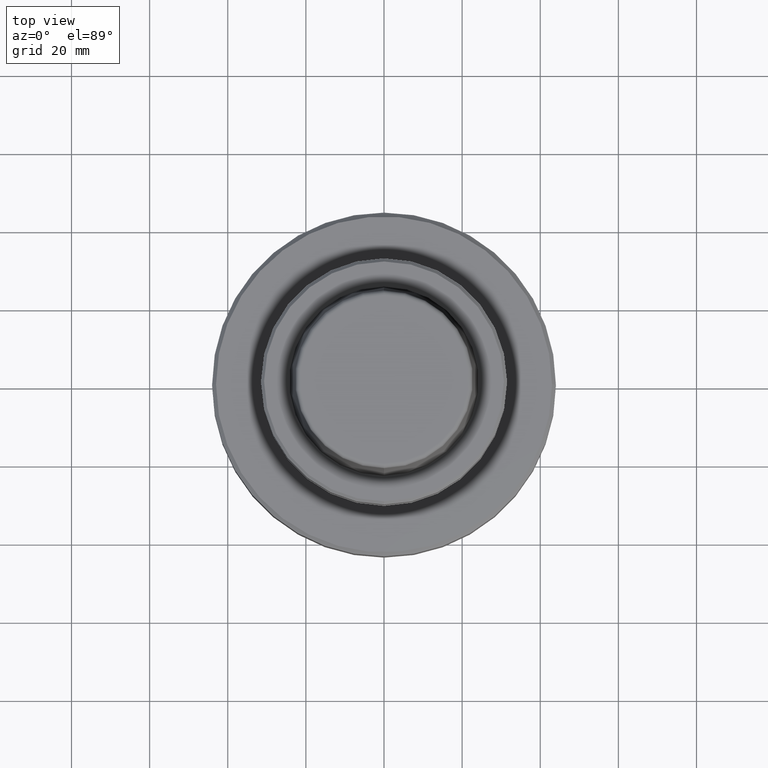
[diagram: clean part render]
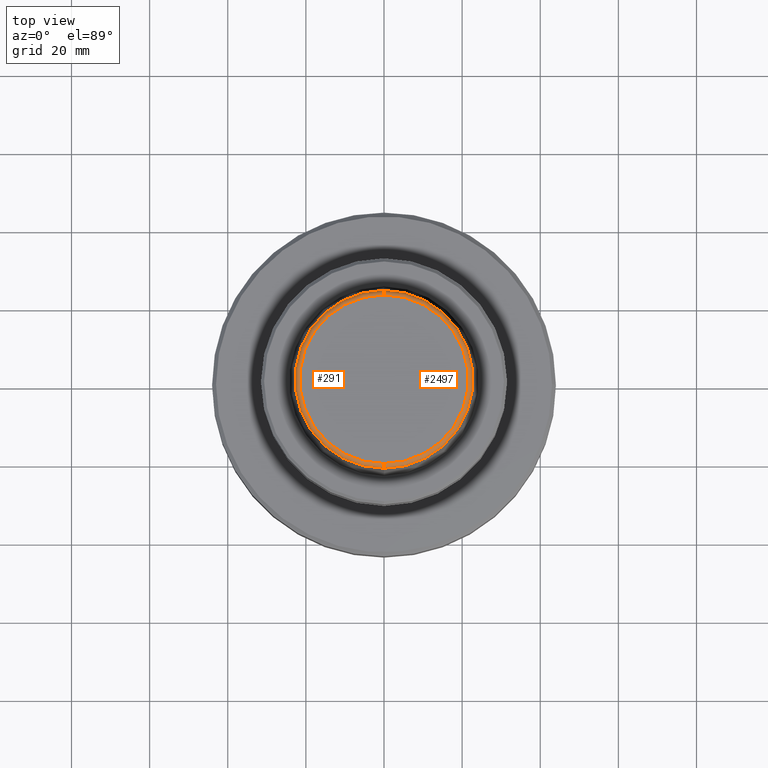
[diagram: same view with one multi-face feature highlighted, each face labeled with its STEP entity id]
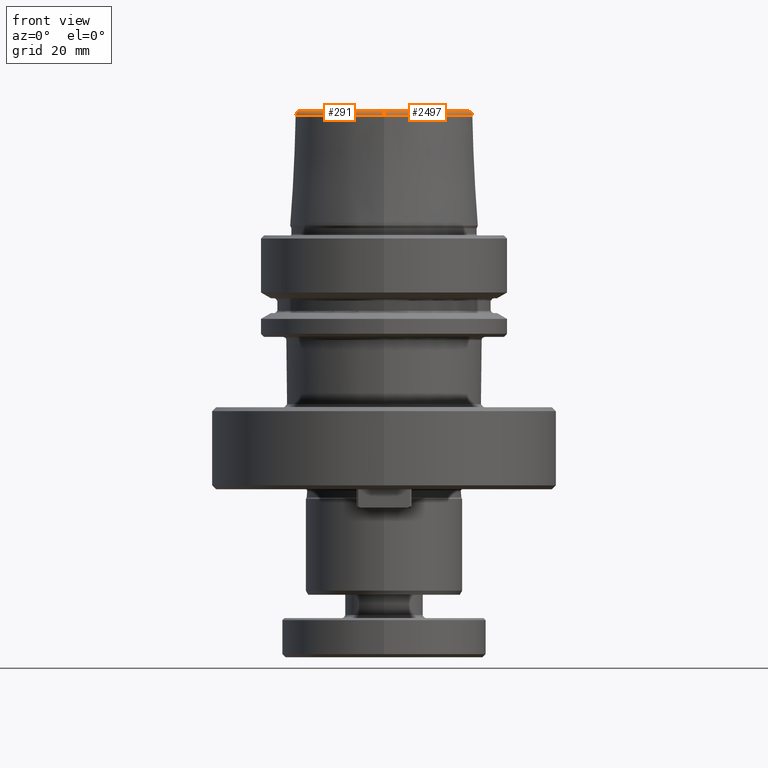
[diagram: same view with one multi-face feature highlighted, each face labeled with its STEP entity id]
A machine part, top view. The highlighted faces form ONE feature: a constant-radius fillet chain: 2 tangent blend faces with common blend radius 1.2 mm. The faces share edges in the B-rep.
A second angle (front view) of the same feature is appended — it is thin or edge-on in the first view.
Their STEP definitions:
[1] entity #2497 (Torus):
#192 = DIRECTION ( 'NONE',  ( -0.0000000000000000000, 1.342951762274862300E-018, 1.000000000000000000 ) ) ;
#340 = ORIENTED_EDGE ( 'NONE', *, *, #3202, .F. ) ;
#477 = CARTESIAN_POINT ( 'NONE',  ( 2.716303250904411500E-015, 21.58105086660056000, 31.90000000000669900 ) ) ;
#502 = VERTEX_POINT ( 'NONE', #477 ) ;
#596 = DIRECTION ( 'NONE',  ( -1.000000000000000000, -0.0000000000000000000, 0.0000000000000000000 ) ) ;
#704 = CARTESIAN_POINT ( 'NONE',  ( 2.876381753844058100E-015, -22.77954767978208000, 30.76004488983019800 ) ) ;
#716 = CARTESIAN_POINT ( 'NONE',  ( 2.642916486601858800E-015, 21.58105086660056000, 30.70000000000661100 ) ) ;
#760 = ORIENTED_EDGE ( 'NONE', *, *, #3186, .T. ) ;
#766 = CARTESIAN_POINT ( 'NONE',  ( 0.0000000000000000000, 0.0000000000000000000, 30.70000000000661100 ) ) ;
#810 = CIRCLE ( 'NONE', #1637, 22.77954767978208000 ) ;
#984 = DIRECTION ( 'NONE',  ( 1.224646799147352000E-016, 1.000000000000000000, 0.0000000000000000000 ) ) ;
#1176 = EDGE_CURVE ( 'NONE', #2190, #502, #3246, .T. ) ;
#1203 = CARTESIAN_POINT ( 'NONE',  ( 0.0000000000000000000, 22.77954767978208000, 30.76004488983019800 ) ) ;
#1213 = FACE_OUTER_BOUND ( 'NONE', #2095, .T. ) ;
#1240 = ORIENTED_EDGE ( 'NONE', *, *, #1176, .F. ) ;
#1284 = VERTEX_POINT ( 'NONE', #704 ) ;
#1291 = CARTESIAN_POINT ( 'NONE',  ( 0.0000000000000000000, -6.793463105667404900E-017, 31.90000000000669900 ) ) ;
#1416 = CARTESIAN_POINT ( 'NONE',  ( 0.0000000000000000000, -6.946553578079982000E-017, 30.76004488983019800 ) ) ;
#1569 = DIRECTION ( 'NONE',  ( 0.0000000000000000000, -1.000000000000000000, 0.0000000000000000000 ) ) ;
#1629 = AXIS2_PLACEMENT_3D ( 'NONE', #1291, #3213, #1569 ) ;
#1637 = AXIS2_PLACEMENT_3D ( 'NONE', #1416, #3334, #1681 ) ;
#1663 = AXIS2_PLACEMENT_3D ( 'NONE', #716, #2632, #984 ) ;
#1681 = DIRECTION ( 'NONE',  ( 0.0000000000000000000, -1.000000000000000000, 0.0000000000000000000 ) ) ;
#2009 = ORIENTED_EDGE ( 'NONE', *, *, #2354, .T. ) ;
#2095 = EDGE_LOOP ( 'NONE', ( #760, #2009, #1240, #340 ) ) ;
#2116 = CARTESIAN_POINT ( 'NONE',  ( 0.0000000000000000000, -21.58105086660056000, 31.90000000000669900 ) ) ;
#2182 = CIRCLE ( 'NONE', #2379, 1.200000000000083000 ) ;
#2190 = VERTEX_POINT ( 'NONE', #2116 ) ;
#2237 = CARTESIAN_POINT ( 'NONE',  ( 0.0000000000000000000, -21.58105086660056000, 30.70000000000661100 ) ) ;
#2354 = EDGE_CURVE ( 'NONE', #3374, #502, #3017, .T. ) ;
#2379 = AXIS2_PLACEMENT_3D ( 'NONE', #2237, #596, #2512 ) ;
#2497 = ADVANCED_FACE ( 'NONE', ( #1213 ), #2589, .T. ) ;
#2512 = DIRECTION ( 'NONE',  ( 0.0000000000000000000, 0.0000000000000000000, 1.000000000000000000 ) ) ;
#2589 = TOROIDAL_SURFACE ( 'NONE', #3521, 21.58105086660056000, 1.200000000000081400 ) ;
#2632 = DIRECTION ( 'NONE',  ( 1.000000000000000000, -1.224646799147353200E-016, 1.644641577079207200E-034 ) ) ;
#2954 = DIRECTION ( 'NONE',  ( 0.0000000000000000000, -1.000000000000000000, 1.342951762274862300E-018 ) ) ;
#3017 = CIRCLE ( 'NONE', #1663, 1.200000000000083000 ) ;
#3186 = EDGE_CURVE ( 'NONE', #1284, #3374, #810, .T. ) ;
#3202 = EDGE_CURVE ( 'NONE', #1284, #2190, #2182, .T. ) ;
#3213 = DIRECTION ( 'NONE',  ( -0.0000000000000000000, 1.342951762274862300E-018, 1.000000000000000000 ) ) ;
#3246 = CIRCLE ( 'NONE', #1629, 21.58105086660056000 ) ;
#3334 = DIRECTION ( 'NONE',  ( -0.0000000000000000000, 1.342951762274862300E-018, 1.000000000000000000 ) ) ;
#3374 = VERTEX_POINT ( 'NONE', #1203 ) ;
#3521 = AXIS2_PLACEMENT_3D ( 'NONE', #766, #192, #2954 ) ;
[2] entity #291 (Torus):
#208 = TOROIDAL_SURFACE ( 'NONE', #657, 21.58105086660056000, 1.200000000000081400 ) ;
#291 = ADVANCED_FACE ( 'NONE', ( #948 ), #208, .T. ) ;
#477 = CARTESIAN_POINT ( 'NONE',  ( 2.716303250904411500E-015, 21.58105086660056000, 31.90000000000669900 ) ) ;
#502 = VERTEX_POINT ( 'NONE', #477 ) ;
#596 = DIRECTION ( 'NONE',  ( -1.000000000000000000, -0.0000000000000000000, 0.0000000000000000000 ) ) ;
#657 = AXIS2_PLACEMENT_3D ( 'NONE', #684, #3149, #1505 ) ;
#679 = EDGE_CURVE ( 'NONE', #502, #2190, #709, .T. ) ;
#684 = CARTESIAN_POINT ( 'NONE',  ( 0.0000000000000000000, 0.0000000000000000000, 30.70000000000661100 ) ) ;
#704 = CARTESIAN_POINT ( 'NONE',  ( 2.876381753844058100E-015, -22.77954767978208000, 30.76004488983019800 ) ) ;
#709 = CIRCLE ( 'NONE', #2093, 21.58105086660056000 ) ;
#716 = CARTESIAN_POINT ( 'NONE',  ( 2.642916486601858800E-015, 21.58105086660056000, 30.70000000000661100 ) ) ;
#852 = CARTESIAN_POINT ( 'NONE',  ( 0.0000000000000000000, -6.793463105667404900E-017, 31.90000000000669900 ) ) ;
#948 = FACE_OUTER_BOUND ( 'NONE', #3339, .T. ) ;
#984 = DIRECTION ( 'NONE',  ( 1.224646799147352000E-016, 1.000000000000000000, 0.0000000000000000000 ) ) ;
#1124 = DIRECTION ( 'NONE',  ( 0.0000000000000000000, -1.000000000000000000, 0.0000000000000000000 ) ) ;
#1203 = CARTESIAN_POINT ( 'NONE',  ( 0.0000000000000000000, 22.77954767978208000, 30.76004488983019800 ) ) ;
#1284 = VERTEX_POINT ( 'NONE', #704 ) ;
#1505 = DIRECTION ( 'NONE',  ( 0.0000000000000000000, -1.000000000000000000, 1.342951762274862300E-018 ) ) ;
#1512 = CARTESIAN_POINT ( 'NONE',  ( 0.0000000000000000000, -6.946553578079982000E-017, 30.76004488983019800 ) ) ;
#1553 = ORIENTED_EDGE ( 'NONE', *, *, #679, .F. ) ;
#1663 = AXIS2_PLACEMENT_3D ( 'NONE', #716, #2632, #984 ) ;
#1794 = DIRECTION ( 'NONE',  ( 0.0000000000000000000, -1.000000000000000000, 0.0000000000000000000 ) ) ;
#2027 = ORIENTED_EDGE ( 'NONE', *, *, #3202, .T. ) ;
#2029 = EDGE_CURVE ( 'NONE', #3374, #1284, #2334, .T. ) ;
#2093 = AXIS2_PLACEMENT_3D ( 'NONE', #852, #2778, #1124 ) ;
#2116 = CARTESIAN_POINT ( 'NONE',  ( 0.0000000000000000000, -21.58105086660056000, 31.90000000000669900 ) ) ;
#2182 = CIRCLE ( 'NONE', #2379, 1.200000000000083000 ) ;
#2190 = VERTEX_POINT ( 'NONE', #2116 ) ;
#2237 = CARTESIAN_POINT ( 'NONE',  ( 0.0000000000000000000, -21.58105086660056000, 30.70000000000661100 ) ) ;
#2334 = CIRCLE ( 'NONE', #2532, 22.77954767978208000 ) ;
#2354 = EDGE_CURVE ( 'NONE', #3374, #502, #3017, .T. ) ;
#2379 = AXIS2_PLACEMENT_3D ( 'NONE', #2237, #596, #2512 ) ;
#2512 = DIRECTION ( 'NONE',  ( 0.0000000000000000000, 0.0000000000000000000, 1.000000000000000000 ) ) ;
#2532 = AXIS2_PLACEMENT_3D ( 'NONE', #1512, #3446, #1794 ) ;
#2632 = DIRECTION ( 'NONE',  ( 1.000000000000000000, -1.224646799147353200E-016, 1.644641577079207200E-034 ) ) ;
#2652 = ORIENTED_EDGE ( 'NONE', *, *, #2029, .T. ) ;
#2778 = DIRECTION ( 'NONE',  ( -0.0000000000000000000, 1.342951762274862300E-018, 1.000000000000000000 ) ) ;
#3017 = CIRCLE ( 'NONE', #1663, 1.200000000000083000 ) ;
#3149 = DIRECTION ( 'NONE',  ( -0.0000000000000000000, 1.342951762274862300E-018, 1.000000000000000000 ) ) ;
#3160 = ORIENTED_EDGE ( 'NONE', *, *, #2354, .F. ) ;
#3202 = EDGE_CURVE ( 'NONE', #1284, #2190, #2182, .T. ) ;
#3339 = EDGE_LOOP ( 'NONE', ( #3160, #2652, #2027, #1553 ) ) ;
#3374 = VERTEX_POINT ( 'NONE', #1203 ) ;
#3446 = DIRECTION ( 'NONE',  ( -0.0000000000000000000, 1.342951762274862300E-018, 1.000000000000000000 ) ) ;